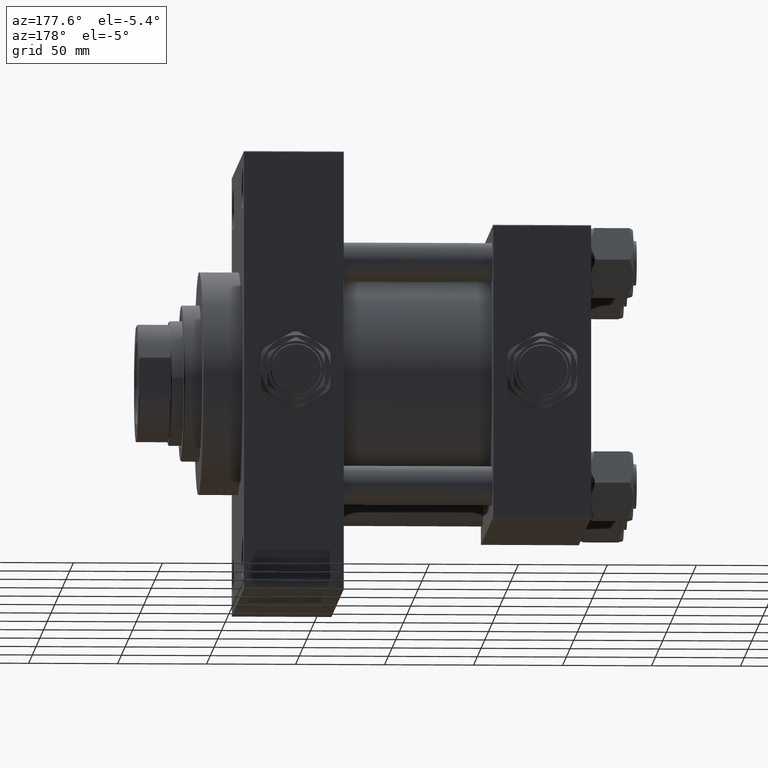
[diagram: clean part render]
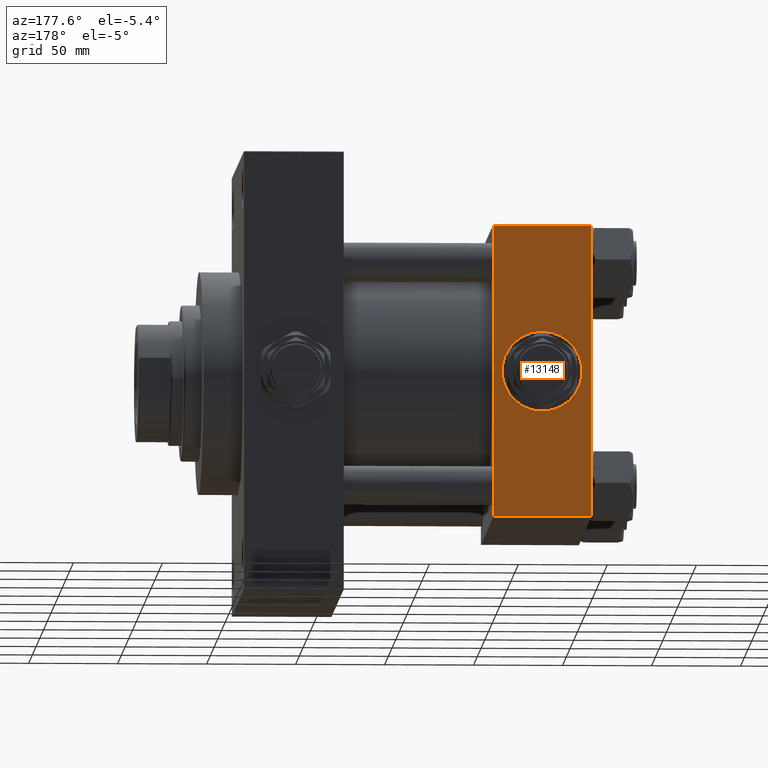
[diagram: same view with one face highlighted and labeled with its STEP entity id]
A machine part, auxiliary view. The second image highlights one B-rep face of the part: STEP entity #13148.
In plain terms, the highlighted planar face has unit normal (0, 1, 0).
Its self-contained STEP definition (entity closure, byte-faithful):
#340 = ORIENTED_EDGE ( 'NONE', *, *, #17722, .T. ) ;
#744 = DIRECTION ( 'NONE',  ( 0.000000000000000000, 1.000000000000000000, 0.000000000000000000 ) ) ;
#1126 = EDGE_LOOP ( 'NONE', ( #9986, #27872, #28467, #340 ) ) ;
#1491 = CIRCLE ( 'NONE', #45910, 22.50000000000000711 ) ;
#3443 = VERTEX_POINT ( 'NONE', #34222 ) ;
#3808 = LINE ( 'NONE', #41974, #34474 ) ;
#5119 = CARTESIAN_POINT ( 'NONE',  ( 55.00000000000000000, 82.50000000000002842, 82.00000000000005684 ) ) ;
#6462 = VERTEX_POINT ( 'NONE', #14313 ) ;
#6957 = VERTEX_POINT ( 'NONE', #22933 ) ;
#7275 = EDGE_CURVE ( 'NONE', #39556, #6462, #37800, .T. ) ;
#7468 = DIRECTION ( 'NONE',  ( 0.000000000000000000, 0.000000000000000000, -1.000000000000000000 ) ) ;
#7866 = DIRECTION ( 'NONE',  ( -1.000000000000000000, 0.000000000000000000, 0.000000000000000000 ) ) ;
#9986 = ORIENTED_EDGE ( 'NONE', *, *, #7275, .T. ) ;
#13109 = VECTOR ( 'NONE', #42767, 1000.000000000000000 ) ;
#13143 = CARTESIAN_POINT ( 'NONE',  ( 27.50000000000000000, 82.50000000000002842, 0.000000000000000000 ) ) ;
#13148 = ADVANCED_FACE ( 'NONE', ( #34839, #46700 ), #19675, .T. ) ;
#13672 = DIRECTION ( 'NONE',  ( 0.000000000000000000, 0.000000000000000000, -1.000000000000000000 ) ) ;
#14313 = CARTESIAN_POINT ( 'NONE',  ( 55.00000000000000000, 82.50000000000002842, -82.00000000000000000 ) ) ;
#16192 = DIRECTION ( 'NONE',  ( 0.000000000000000000, 0.000000000000000000, 1.000000000000000000 ) ) ;
#17195 = AXIS2_PLACEMENT_3D ( 'NONE', #27259, #18936, #35078 ) ;
#17722 = EDGE_CURVE ( 'NONE', #6957, #39556, #43259, .T. ) ;
#18936 = DIRECTION ( 'NONE',  ( -0.000000000000000000, 1.000000000000000000, 0.000000000000000000 ) ) ;
#19227 = CARTESIAN_POINT ( 'NONE',  ( 27.50000000000000000, 82.50000000000002842, 0.000000000000000000 ) ) ;
#19675 = PLANE ( 'NONE',  #17195 ) ;
#21219 = DIRECTION ( 'NONE',  ( 0.000000000000000000, 1.000000000000000000, 0.000000000000000000 ) ) ;
#21240 = LINE ( 'NONE', #25050, #26907 ) ;
#21398 = EDGE_CURVE ( 'NONE', #6957, #3443, #21240, .T. ) ;
#21607 = EDGE_LOOP ( 'NONE', ( #37456, #24343 ) ) ;
#22933 = CARTESIAN_POINT ( 'NONE',  ( 0.000000000000000000, 82.50000000000002842, 82.00000000000005684 ) ) ;
#23122 = CARTESIAN_POINT ( 'NONE',  ( 55.00000000000000000, 82.50000000000002842, 82.50000000000002842 ) ) ;
#24343 = ORIENTED_EDGE ( 'NONE', *, *, #36257, .F. ) ;
#25050 = CARTESIAN_POINT ( 'NONE',  ( 0.000000000000000000, 82.50000000000002842, 82.50000000000002842 ) ) ;
#26575 = AXIS2_PLACEMENT_3D ( 'NONE', #19227, #744, #16192 ) ;
#26907 = VECTOR ( 'NONE', #13672, 1000.000000000000000 ) ;
#27259 = CARTESIAN_POINT ( 'NONE',  ( 55.00000000000000000, 82.50000000000002842, 82.50000000000002842 ) ) ;
#27358 = CIRCLE ( 'NONE', #26575, 22.50000000000000711 ) ;
#27872 = ORIENTED_EDGE ( 'NONE', *, *, #43716, .T. ) ;
#28467 = ORIENTED_EDGE ( 'NONE', *, *, #21398, .F. ) ;
#31240 = VECTOR ( 'NONE', #7468, 1000.000000000000000 ) ;
#34222 = CARTESIAN_POINT ( 'NONE',  ( 0.000000000000000000, 82.50000000000002842, -82.00000000000000000 ) ) ;
#34474 = VECTOR ( 'NONE', #7866, 1000.000000000000000 ) ;
#34839 = FACE_BOUND ( 'NONE', #21607, .T. ) ;
#35078 = DIRECTION ( 'NONE',  ( 0.000000000000000000, -0.000000000000000000, 1.000000000000000000 ) ) ;
#36257 = EDGE_CURVE ( 'NONE', #36505, #48129, #1491, .T. ) ;
#36505 = VERTEX_POINT ( 'NONE', #46691 ) ;
#36620 = DIRECTION ( 'NONE',  ( 0.000000000000000000, 0.000000000000000000, 1.000000000000000000 ) ) ;
#37456 = ORIENTED_EDGE ( 'NONE', *, *, #48842, .F. ) ;
#37800 = LINE ( 'NONE', #23122, #31240 ) ;
#39556 = VERTEX_POINT ( 'NONE', #49122 ) ;
#40087 = CARTESIAN_POINT ( 'NONE',  ( 27.50000000000000000, 82.50000000000002842, 22.50000000000000711 ) ) ;
#41974 = CARTESIAN_POINT ( 'NONE',  ( 55.00000000000000000, 82.50000000000002842, -82.00000000000000000 ) ) ;
#42767 = DIRECTION ( 'NONE',  ( 1.000000000000000000, 0.000000000000000000, 0.000000000000000000 ) ) ;
#43259 = LINE ( 'NONE', #5119, #13109 ) ;
#43716 = EDGE_CURVE ( 'NONE', #6462, #3443, #3808, .T. ) ;
#45910 = AXIS2_PLACEMENT_3D ( 'NONE', #13143, #21219, #36620 ) ;
#46691 = CARTESIAN_POINT ( 'NONE',  ( 27.50000000000000355, 82.50000000000002842, -22.50000000000000711 ) ) ;
#46700 = FACE_OUTER_BOUND ( 'NONE', #1126, .T. ) ;
#48129 = VERTEX_POINT ( 'NONE', #40087 ) ;
#48842 = EDGE_CURVE ( 'NONE', #48129, #36505, #27358, .T. ) ;
#49122 = CARTESIAN_POINT ( 'NONE',  ( 55.00000000000000000, 82.50000000000002842, 82.00000000000005684 ) ) ;